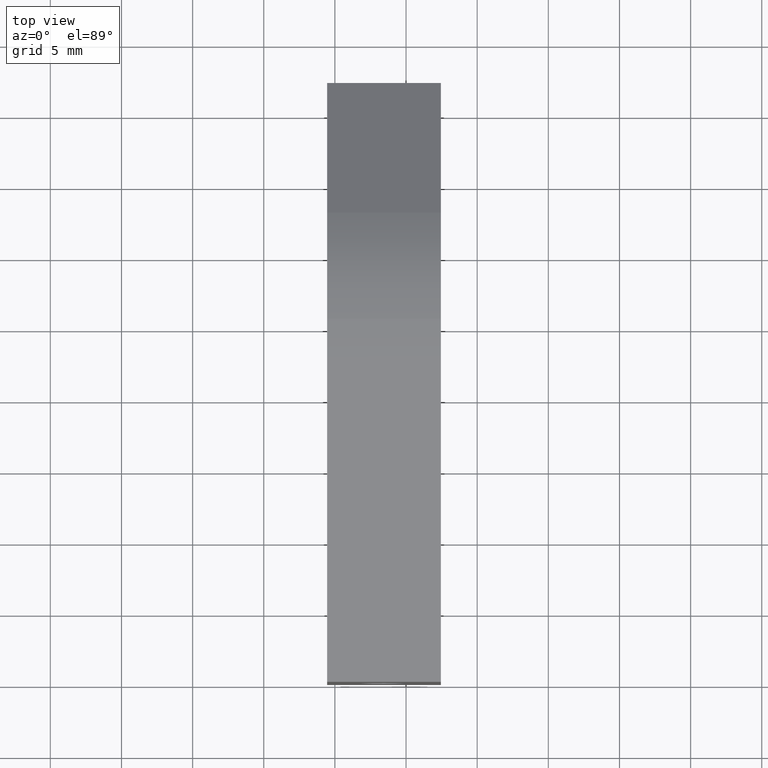
[diagram: clean part render]
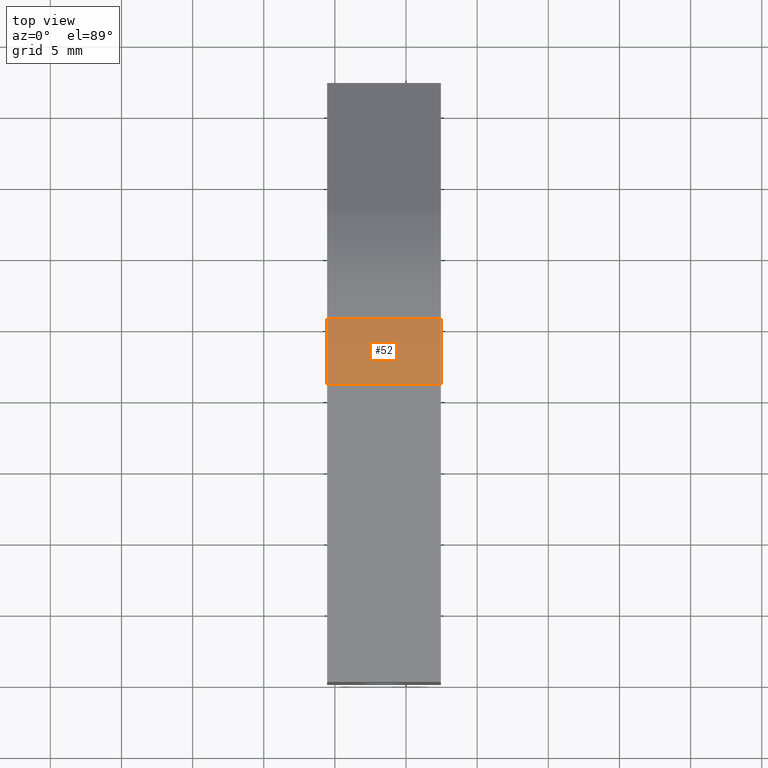
[diagram: same view with one face highlighted and labeled with its STEP entity id]
A machine part, top view. The second image highlights one B-rep face of the part: STEP entity #52.
In plain terms, the highlighted cylindrical surface (partial cylindrical patch) has radius 14.2 mm, axis along (-1, -0, -0).
Its self-contained STEP definition (entity closure, byte-faithful):
#10 = VECTOR ( 'NONE', #813, 1000.000000000000000 ) ;
#52 = ADVANCED_FACE ( 'NONE', ( #1084 ), #856, .T. ) ;
#85 = CARTESIAN_POINT ( 'NONE',  ( -15.54903037869330085, 0.8370560813340368611, 55.54174770981828146 ) ) ;
#95 = DIRECTION ( 'NONE',  ( 0.0000000000000000000, 0.0000000000000000000, -1.000000000000000000 ) ) ;
#126 = CIRCLE ( 'NONE', #613, 14.20000000000000107 ) ;
#136 = EDGE_CURVE ( 'NONE', #864, #459, #1428, .T. ) ;
#154 = CARTESIAN_POINT ( 'NONE',  ( -7.549030378693300847, 5.415201831044820224, 56.30000000000000426 ) ) ;
#165 = CARTESIAN_POINT ( 'NONE',  ( -7.549030378693300847, 5.415201831044820224, 42.10000000000000142 ) ) ;
#171 = EDGE_CURVE ( 'NONE', #1060, #1036, #126, .T. ) ;
#187 = DIRECTION ( 'NONE',  ( -1.000000000000000000, -0.0000000000000000000, -0.0000000000000000000 ) ) ;
#203 = DIRECTION ( 'NONE',  ( 0.0000000000000000000, 0.0000000000000000000, -1.000000000000000000 ) ) ;
#280 = AXIS2_PLACEMENT_3D ( 'NONE', #165, #187, #749 ) ;
#340 = DIRECTION ( 'NONE',  ( 1.000000000000000000, 0.0000000000000000000, 0.0000000000000000000 ) ) ;
#359 = EDGE_CURVE ( 'NONE', #1036, #459, #1399, .T. ) ;
#419 = CARTESIAN_POINT ( 'NONE',  ( -7.549030378693300847, 5.415201831044820224, 56.30000000000000426 ) ) ;
#459 = VERTEX_POINT ( 'NONE', #85 ) ;
#471 = EDGE_CURVE ( 'NONE', #1060, #864, #772, .T. ) ;
#565 = CARTESIAN_POINT ( 'NONE',  ( -15.54903037869330085, 5.415201831044820224, 56.30000000000000426 ) ) ;
#613 = AXIS2_PLACEMENT_3D ( 'NONE', #1370, #340, #95 ) ;
#617 = DIRECTION ( 'NONE',  ( -1.000000000000000000, -0.0000000000000000000, -0.0000000000000000000 ) ) ;
#725 = CARTESIAN_POINT ( 'NONE',  ( -7.549030378693300847, 0.8370560813340368611, 55.54174770981828146 ) ) ;
#749 = DIRECTION ( 'NONE',  ( 0.0000000000000000000, 0.0000000000000000000, 1.000000000000000000 ) ) ;
#772 = LINE ( 'NONE', #154, #898 ) ;
#813 = DIRECTION ( 'NONE',  ( -1.000000000000000000, -0.0000000000000000000, -0.0000000000000000000 ) ) ;
#856 = CYLINDRICAL_SURFACE ( 'NONE', #280, 14.20000000000000462 ) ;
#864 = VERTEX_POINT ( 'NONE', #565 ) ;
#898 = VECTOR ( 'NONE', #617, 1000.000000000000000 ) ;
#994 = EDGE_LOOP ( 'NONE', ( #1321, #1398, #999, #1183 ) ) ;
#999 = ORIENTED_EDGE ( 'NONE', *, *, #136, .T. ) ;
#1036 = VERTEX_POINT ( 'NONE', #725 ) ;
#1041 = CARTESIAN_POINT ( 'NONE',  ( -7.549030378693300847, 0.8370560813340368611, 55.54174770981828146 ) ) ;
#1060 = VERTEX_POINT ( 'NONE', #419 ) ;
#1084 = FACE_OUTER_BOUND ( 'NONE', #994, .T. ) ;
#1128 = DIRECTION ( 'NONE',  ( 1.000000000000000000, 0.0000000000000000000, 0.0000000000000000000 ) ) ;
#1183 = ORIENTED_EDGE ( 'NONE', *, *, #359, .F. ) ;
#1210 = AXIS2_PLACEMENT_3D ( 'NONE', #1471, #1128, #203 ) ;
#1321 = ORIENTED_EDGE ( 'NONE', *, *, #171, .F. ) ;
#1370 = CARTESIAN_POINT ( 'NONE',  ( -7.549030378693300847, 5.415201831044820224, 42.10000000000000142 ) ) ;
#1398 = ORIENTED_EDGE ( 'NONE', *, *, #471, .T. ) ;
#1399 = LINE ( 'NONE', #1041, #10 ) ;
#1428 = CIRCLE ( 'NONE', #1210, 14.20000000000000107 ) ;
#1471 = CARTESIAN_POINT ( 'NONE',  ( -15.54903037869330085, 5.415201831044820224, 42.10000000000000142 ) ) ;